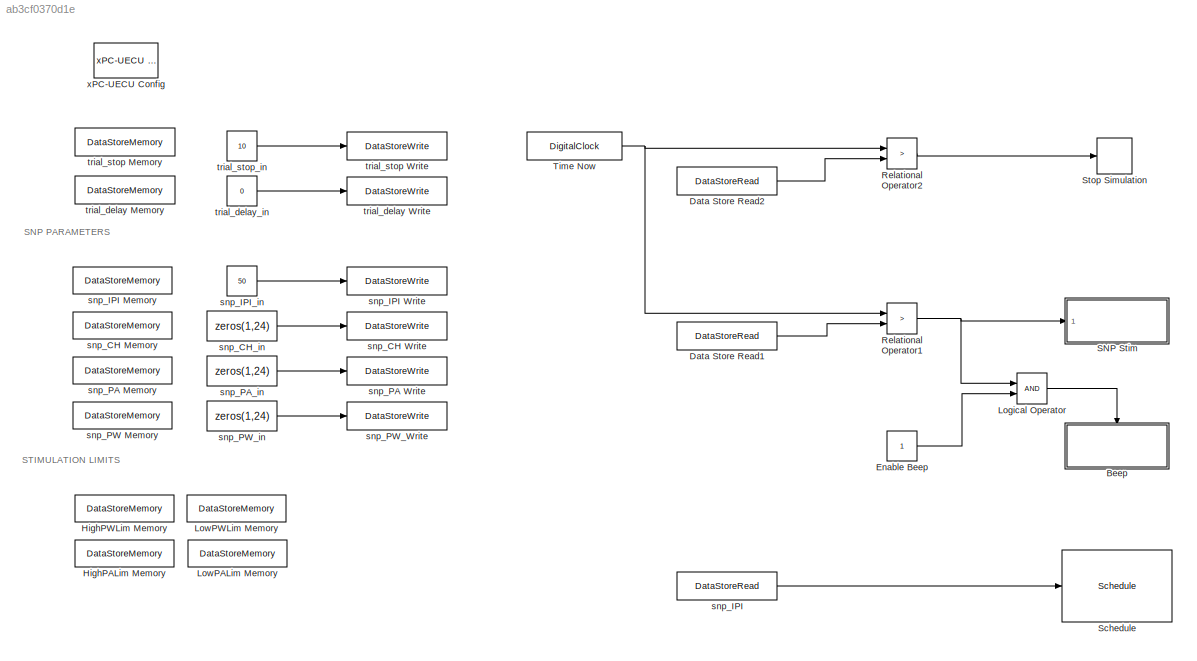
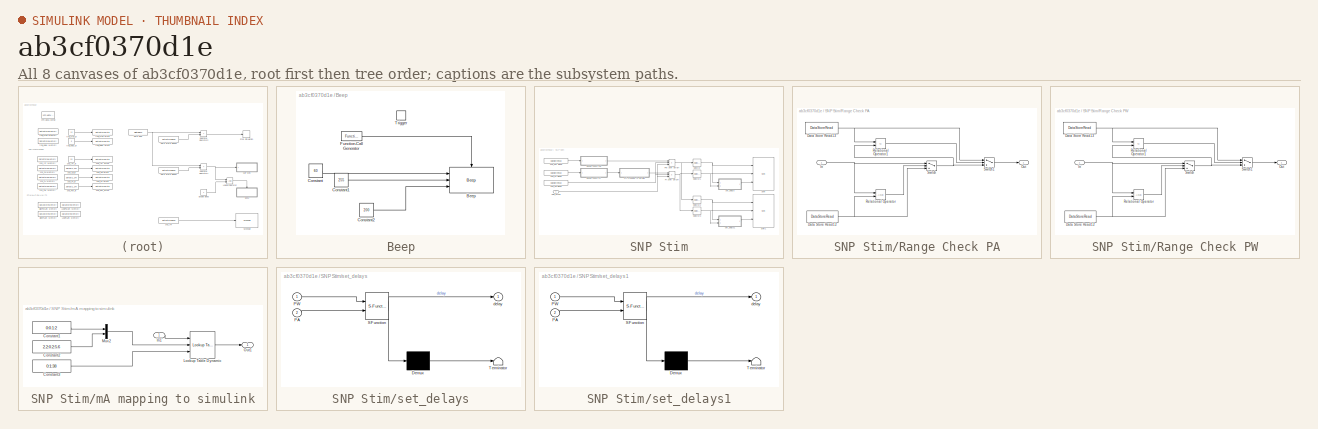
[diagram: thumbnail index - all 8 canvases of the model, root first then tree order]
MODEL slx_ab3cf0370d1e
KIND model
CONFIG AbsTol = auto
CONFIG EnableMultiTasking = on
CONFIG FixedStep = auto
CONFIG MaxStep = auto
CONFIG MinStep = auto
CONFIG PreLoadFcn = Ts=1e-3;
CONFIG RelTol = 1e-3
CONFIG SampleTimeConstraint = Unconstrained
CONFIG SolverName = FixedStepDiscrete
CONFIG StartTime = 0.0
CONFIG StopTime = inf
BLOCK [SubSystem] Beep
  Ports = [0, 0, 0, 1]
  RequestExecContextInheritance = off
  TreatAsAtomicUnit = on
BLOCK [Reference] Beep/Beep  REF=devices/Sound/Beep
  Ports = [3, 0, 0, 1]
  SourceBlock = devices/Sound/Beep
  SourceProductName = UECU
  SourceType = Beep
BLOCK [Constant] Beep/Constant
  OutDataTypeStr = uint8
  SampleTime = -1
  Value = 60
BLOCK [Constant] Beep/Constant1
  OutDataTypeStr = uint8
  SampleTime = -1
  Value = 255
BLOCK [Constant] Beep/Constant2
  OutDataTypeStr = uint16
  SampleTime = -1
  Value = 200
BLOCK [Reference] Beep/Function-Call Generator  REF=simulink/Ports &
Subsystems/Function-Call
Generator
  Ports = [0, 1]
  SourceBlock = simulink/Ports &\nSubsystems/Function-Call\nGenerator
  SourceProductBaseCode = SL
  SourceType = Function-Call Generator
BLOCK [TriggerPort] Beep/Trigger
  Ports = []
  StatesWhenEnabling = held
  VariantControl = (inherit)
BLOCK [DataStoreRead] Data Store Read1
  DataStoreName = trial_delay
  Ports = [0, 1]
BLOCK [DataStoreRead] Data Store Read2
  DataStoreName = trial_stop
  Ports = [0, 1]
  SampleTime = Ts
BLOCK [Constant] Enable Beep
  OutDataTypeStr = boolean
  SampleTime = Ts
BLOCK [DataStoreMemory] HighPALim Memory
  DataStoreName = HighPALim
  InitialValue = 5.6
  ReadBeforeWriteMsg = warning
  ShowAdditionalParam = off
  WriteAfterReadMsg = warning
  WriteAfterWriteMsg = warning
BLOCK [DataStoreMemory] HighPWLim Memory
  DataStoreName = HighPWLim
  InitialValue = 255
  ReadBeforeWriteMsg = warning
  ShowAdditionalParam = off
  WriteAfterReadMsg = warning
  WriteAfterWriteMsg = warning
BLOCK [Logic] Logical Operator
  AllPortsSameDT = off
  OutDataTypeStr = boolean
  Ports = [2, 1]
BLOCK [DataStoreMemory] LowPALim Memory
  DataStoreName = LowPALim
  ReadBeforeWriteMsg = warning
  ShowAdditionalParam = off
  WriteAfterReadMsg = warning
  WriteAfterWriteMsg = warning
BLOCK [DataStoreMemory] LowPWLim Memory
  DataStoreName = LowPWLim
  ReadBeforeWriteMsg = warning
  ShowAdditionalParam = off
  WriteAfterReadMsg = warning
  WriteAfterWriteMsg = warning
BLOCK [RelationalOperator] Relational Operator1
  InputSameDT = off
  Operator = >
  OutDataTypeStr = boolean
  Ports = [2, 1]
  SampleTime = Ts
BLOCK [RelationalOperator] Relational Operator2
  InputSameDT = off
  Operator = >
  OutDataTypeStr = boolean
  Ports = [2, 1]
  SampleTime = Ts
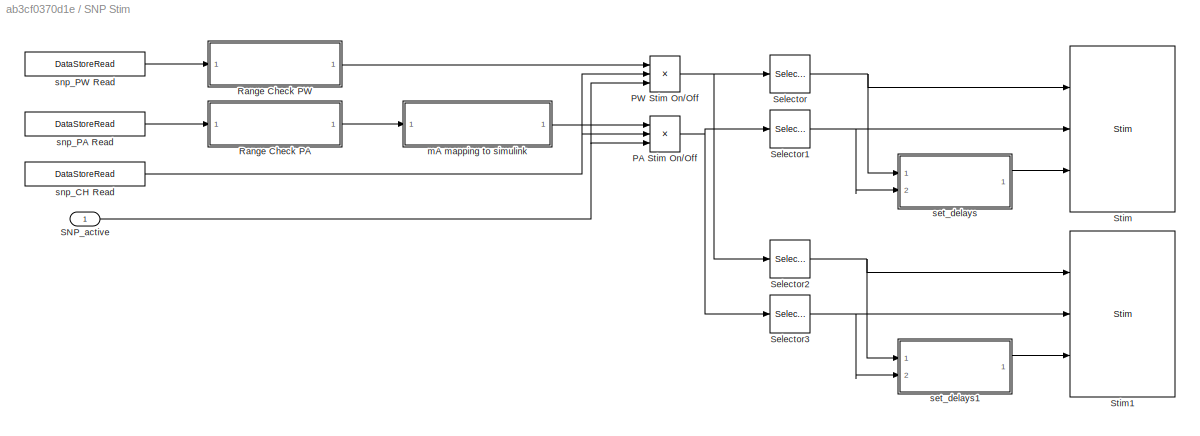
BLOCK [SubSystem] SNP Stim
  Ports = [1]
  RequestExecContextInheritance = off
  TreatAsAtomicUnit = on
BLOCK [Product] SNP Stim/PA Stim On//Off
  Inputs = ***
  OutDataTypeStr = uint8
  Ports = [3, 1]
  SampleTime = Ts
BLOCK [Product] SNP Stim/PW Stim On//Off
  Inputs = ***
  OutDataTypeStr = uint8
  Ports = [3, 1]
  SampleTime = Ts
BLOCK [SubSystem] SNP Stim/Range Check PA
  Ports = [1, 1]
  RequestExecContextInheritance = off
BLOCK [DataStoreRead] SNP Stim/Range Check PA/Data Store Read12
  DataStoreName = LowPALim
  Ports = [0, 1]
  SampleTime = Ts
BLOCK [DataStoreRead] SNP Stim/Range Check PA/Data Store Read13
  DataStoreName = HighPALim
  Ports = [0, 1]
  SampleTime = Ts
BLOCK [Inport] SNP Stim/Range Check PA/In
  OutDataTypeStr = double
BLOCK [Outport] SNP Stim/Range Check PA/Out
  OutDataTypeStr = double
BLOCK [RelationalOperator] SNP Stim/Range Check PA/Relational Operator
  InputSameDT = off
  OutDataTypeStr = boolean
  Ports = [2, 1]
  SampleTime = Ts
BLOCK [RelationalOperator] SNP Stim/Range Check PA/Relational Operator1
  InputSameDT = off
  Operator = <=
  OutDataTypeStr = boolean
  Ports = [2, 1]
  SampleTime = Ts
BLOCK [Switch] SNP Stim/Range Check PA/Switch
  Criteria = u2 > Threshold
  InputSameDT = off
  SampleTime = Ts
  SaturateOnIntegerOverflow = off
BLOCK [Switch] SNP Stim/Range Check PA/Switch1
  Criteria = u2 > Threshold
  InputSameDT = off
  SampleTime = Ts
  SaturateOnIntegerOverflow = off
BLOCK [SubSystem] SNP Stim/Range Check PW
  Ports = [1, 1]
  RequestExecContextInheritance = off
BLOCK [DataStoreRead] SNP Stim/Range Check PW/Data Store Read12
  DataStoreName = LowPWLim
  Ports = [0, 1]
  SampleTime = Ts
BLOCK [DataStoreRead] SNP Stim/Range Check PW/Data Store Read13
  DataStoreName = HighPWLim
  Ports = [0, 1]
  SampleTime = Ts
BLOCK [Inport] SNP Stim/Range Check PW/In
  OutDataTypeStr = uint8
BLOCK [Outport] SNP Stim/Range Check PW/Out
  OutDataTypeStr = uint8
BLOCK [RelationalOperator] SNP Stim/Range Check PW/Relational Operator
  InputSameDT = off
  OutDataTypeStr = boolean
  Ports = [2, 1]
  SampleTime = Ts
BLOCK [RelationalOperator] SNP Stim/Range Check PW/Relational Operator1
  InputSameDT = off
  Operator = <=
  OutDataTypeStr = boolean
  Ports = [2, 1]
  SampleTime = Ts
BLOCK [Switch] SNP Stim/Range Check PW/Switch
  Criteria = u2 > Threshold
  InputSameDT = off
  SampleTime = Ts
  SaturateOnIntegerOverflow = off
BLOCK [Switch] SNP Stim/Range Check PW/Switch1
  Criteria = u2 > Threshold
  InputSameDT = off
  SampleTime = Ts
  SaturateOnIntegerOverflow = off
BLOCK [Inport] SNP Stim/SNP_active
  OutDataTypeStr = boolean
BLOCK [Selector] SNP Stim/Selector
  IndexMode = Zero-based
  IndexOptions = Index vector (dialog)
  Indices = [0:11]
  InputPortWidth = 24
  OutputSizes = 1
  Ports = [1, 1]
BLOCK [Selector] SNP Stim/Selector1
  IndexMode = Zero-based
  IndexOptions = Index vector (dialog)
  Indices = [0:11]
  InputPortWidth = 24
  OutputSizes = 1
  Ports = [1, 1]
BLOCK [Selector] SNP Stim/Selector2
  IndexMode = Zero-based
  IndexOptions = Index vector (dialog)
  Indices = [12:23]
  InputPortWidth = 24
  OutputSizes = 1
  Ports = [1, 1]
BLOCK [Selector] SNP Stim/Selector3
  IndexMode = Zero-based
  IndexOptions = Index vector (dialog)
  Indices = [12:23]
  InputPortWidth = 24
  OutputSizes = 1
  Ports = [1, 1]
BLOCK [Reference] SNP Stim/Stim  REF=devices/Stim
  Ports = [3]
  SourceBlock = devices/Stim
  SourceProductName = UECU
  SourceType = Stim
BLOCK [Reference] SNP Stim/Stim1  REF=devices/Stim
  Ports = [3]
  SourceBlock = devices/Stim
  SourceProductName = UECU
  SourceType = Stim
BLOCK [SubSystem] SNP Stim/mA mapping to simulink
  Ports = [1, 1]
  RequestExecContextInheritance = off
BLOCK [Constant] SNP Stim/mA mapping to simulink/Constant1
  OutDataTypeStr = double
  Value = 0:0.1:2
BLOCK [Constant] SNP Stim/mA mapping to simulink/Constant2
  OutDataTypeStr = double
  Value = 2.2:0.2:5.6
BLOCK [Constant] SNP Stim/mA mapping to simulink/Constant3
  OutDataTypeStr = uint8
  Value = 0:1:38
BLOCK [Inport] SNP Stim/mA mapping to simulink/In1
  OutDataTypeStr = double
  PortDimensions = 24
BLOCK [Reference] SNP Stim/mA mapping to simulink/Lookup Table Dynamic  REF=simulink/Lookup
Tables/Lookup
Table
Dynamic
  Ports = [3, 1]
  SourceBlock = simulink/Lookup\nTables/Lookup\nTable\nDynamic
  SourceProductBaseCode = SL
  SourceType = Lookup Table Dynamic
BLOCK [Mux] SNP Stim/mA mapping to simulink/Mux2
  DisplayOption = bar
  Inputs = 2
  Ports = [2, 1]
BLOCK [Outport] SNP Stim/mA mapping to simulink/Out1
  OutDataTypeStr = uint8
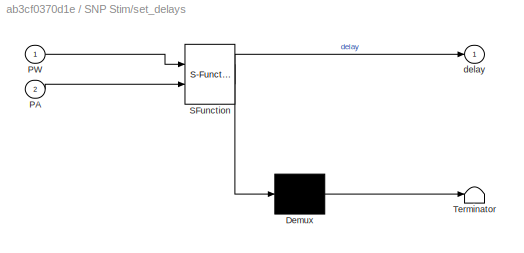
BLOCK [SubSystem] SNP Stim/set_delays
  ErrorFcn = Stateflow.Translate.translate
  PermitHierarchicalResolution = ExplicitOnly
  Ports = [2, 1]
  RequestExecContextInheritance = off
  SFBlockType = MATLAB Function
  TreatAsAtomicUnit = on
BLOCK [Demux] SNP Stim/set_delays/ Demux 
  Outputs = 1
  Ports = [1, 1]
BLOCK [S-Function] SNP Stim/set_delays/ SFunction 
  EnableBusSupport = on
  FunctionName = sf_sfun
  PortCounts = [2 2]
  Ports = [2, 2]
  SFcnIsStateOwnerBlock = off
  SFunctionDeploymentMode = off
  Tag = Stateflow S-Function 2
BLOCK [Terminator] SNP Stim/set_delays/ Terminator 
BLOCK [Inport] SNP Stim/set_delays/PA
  Port = 2
BLOCK [Inport] SNP Stim/set_delays/PW
BLOCK [Outport] SNP Stim/set_delays/delay
BLOCK [SubSystem] SNP Stim/set_delays1
  ErrorFcn = Stateflow.Translate.translate
  PermitHierarchicalResolution = ExplicitOnly
  Ports = [2, 1]
  RequestExecContextInheritance = off
  SFBlockType = MATLAB Function
  TreatAsAtomicUnit = on
BLOCK [Demux] SNP Stim/set_delays1/ Demux 
  Outputs = 1
  Ports = [1, 1]
BLOCK [S-Function] SNP Stim/set_delays1/ SFunction 
  EnableBusSupport = on
  FunctionName = sf_sfun
  PortCounts = [2 2]
  Ports = [2, 2]
  SFcnIsStateOwnerBlock = off
  SFunctionDeploymentMode = off
  Tag = Stateflow S-Function 1
BLOCK [Terminator] SNP Stim/set_delays1/ Terminator 
BLOCK [Inport] SNP Stim/set_delays1/PA
  Port = 2
BLOCK [Inport] SNP Stim/set_delays1/PW
BLOCK [Outport] SNP Stim/set_delays1/delay
BLOCK [DataStoreRead] SNP Stim/snp_CH Read
  DataStoreName = snp_CH
  Ports = [0, 1]
  SampleTime = Ts
BLOCK [DataStoreRead] SNP Stim/snp_PA Read
  DataStoreName = snp_PA
  Ports = [0, 1]
  SampleTime = Ts
BLOCK [DataStoreRead] SNP Stim/snp_PW Read
  DataStoreName = snp_PW
  Ports = [0, 1]
  SampleTime = Ts
BLOCK [Reference] Schedule  REF=devices/Schedule
  Ports = [1]
  SourceBlock = devices/Schedule
  SourceProductName = UECU
  SourceType = Schedule
BLOCK [Stop] Stop Simulation
BLOCK [DigitalClock] Time Now
  SampleTime = Ts
BLOCK [DataStoreMemory] snp_CH Memory
  DataStoreName = snp_CH
  InitialValue = zeros(1,24)
  OutDataTypeStr = boolean
  ReadBeforeWriteMsg = warning
  ShowAdditionalParam = off
  WriteAfterReadMsg = warning
  WriteAfterWriteMsg = warning
BLOCK [DataStoreWrite] snp_CH Write
  DataStoreName = snp_CH
  Ports = [1]
  SampleTime = Ts
BLOCK [Constant] snp_CH_in
  OutDataTypeStr = boolean
  SampleTime = Ts
  Value = zeros(1,24)
BLOCK [DataStoreRead] snp_IPI
  DataStoreName = snp_IPI
  Ports = [0, 1]
  SampleTime = Ts
BLOCK [DataStoreMemory] snp_IPI Memory
  DataStoreName = snp_IPI
  OutDataTypeStr = uint16
  ReadBeforeWriteMsg = warning
  ShowAdditionalParam = off
  WriteAfterReadMsg = warning
  WriteAfterWriteMsg = warning
BLOCK [DataStoreWrite] snp_IPI Write
  DataStoreName = snp_IPI
  Ports = [1]
  SampleTime = Ts
BLOCK [Constant] snp_IPI_in
  OutDataTypeStr = uint16
  SampleTime = Ts
  Value = 50
BLOCK [DataStoreMemory] snp_PA Memory
  DataStoreName = snp_PA
  InitialValue = zeros(1,24)
  OutDataTypeStr = double
  ReadBeforeWriteMsg = warning
  ShowAdditionalParam = off
  WriteAfterReadMsg = warning
  WriteAfterWriteMsg = warning
BLOCK [DataStoreWrite] snp_PA Write
  DataStoreName = snp_PA
  Ports = [1]
  SampleTime = Ts
BLOCK [Constant] snp_PA_in
  OutDataTypeStr = double
  SampleTime = Ts
  Value = zeros(1,24)
BLOCK [DataStoreMemory] snp_PW Memory
  DataStoreName = snp_PW
  InitialValue = zeros(1,24)
  OutDataTypeStr = uint8
  ReadBeforeWriteMsg = warning
  ShowAdditionalParam = off
  WriteAfterReadMsg = warning
  WriteAfterWriteMsg = warning
BLOCK [DataStoreWrite] snp_PW_Write
  DataStoreName = snp_PW
  Ports = [1]
  SampleTime = Ts
BLOCK [Constant] snp_PW_in
  OutDataTypeStr = uint8
  SampleTime = Ts
  Value = zeros(1,24)
BLOCK [DataStoreMemory] trial_delay Memory
  DataStoreName = trial_delay
  ReadBeforeWriteMsg = warning
  ShowAdditionalParam = off
  WriteAfterReadMsg = warning
  WriteAfterWriteMsg = warning
BLOCK [DataStoreWrite] trial_delay Write
  DataStoreName = trial_delay
  Ports = [1]
BLOCK [Constant] trial_delay_in
  SampleTime = Ts
  Value = 0
BLOCK [DataStoreMemory] trial_stop Memory
  DataStoreName = trial_stop
  ReadBeforeWriteMsg = warning
  ShowAdditionalParam = off
  WriteAfterReadMsg = warning
  WriteAfterWriteMsg = warning
BLOCK [DataStoreWrite] trial_stop Write
  DataStoreName = trial_stop
  Ports = [1]
BLOCK [Constant] trial_stop_in
  SampleTime = Ts
  Value = 10
BLOCK [Reference] xPC-UECU Config  REF=devices/xPC Functions/xPC-UECU
Config
  Ports = []
  SourceBlock = devices/xPC Functions/xPC-UECU\nConfig
  SourceProductName = UECU
  SourceType = xPC-UECU Config
ANNOTATION (root): SNP PARAMETERS
ANNOTATION (root): STIMULATION LIMITS
LINE Beep/Constant1:1 -> Beep/Beep:2
LINE Beep/Constant2:1 -> Beep/Beep:3
LINE Beep/Constant:1 -> Beep/Beep:1
LINE Beep/Function-Call Generator:1 -> Beep/Beep:trigger
LINE Data Store Read1:1 -> Relational Operator1:2
LINE Data Store Read2:1 -> Relational Operator2:2
LINE Enable Beep:1 -> Logical Operator:2
LINE Logical Operator:1 -> Beep:trigger
NET Relational Operator1:1 -> Logical Operator:1, SNP Stim:1
LINE Relational Operator2:1 -> Stop Simulation:1
NET SNP Stim/PA Stim On//Off:1 -> SNP Stim/Selector1:1, SNP Stim/Selector3:1
NET SNP Stim/PW Stim On//Off:1 -> SNP Stim/Selector2:1, SNP Stim/Selector:1
NET SNP Stim/Range Check PA/Data Store Read12:1 -> SNP Stim/Range Check PA/Relational Operator:2, SNP Stim/Range Check PA/Switch:3
NET SNP Stim/Range Check PA/Data Store Read13:1 -> SNP Stim/Range Check PA/Relational Operator1:1, SNP Stim/Range Check PA/Switch1:1
NET SNP Stim/Range Check PA/In:1 -> SNP Stim/Range Check PA/Relational Operator:1, SNP Stim/Range Check PA/Switch:1
LINE SNP Stim/Range Check PA/Relational Operator1:1 -> SNP Stim/Range Check PA/Switch1:2
LINE SNP Stim/Range Check PA/Relational Operator:1 -> SNP Stim/Range Check PA/Switch:2
LINE SNP Stim/Range Check PA/Switch1:1 -> SNP Stim/Range Check PA/Out:1
NET SNP Stim/Range Check PA/Switch:1 -> SNP Stim/Range Check PA/Relational Operator1:2, SNP Stim/Range Check PA/Switch1:3
LINE SNP Stim/Range Check PA:1 -> SNP Stim/mA mapping to simulink:1
NET SNP Stim/Range Check PW/Data Store Read12:1 -> SNP Stim/Range Check PW/Relational Operator:2, SNP Stim/Range Check PW/Switch:3
NET SNP Stim/Range Check PW/Data Store Read13:1 -> SNP Stim/Range Check PW/Relational Operator1:1, SNP Stim/Range Check PW/Switch1:1
NET SNP Stim/Range Check PW/In:1 -> SNP Stim/Range Check PW/Relational Operator:1, SNP Stim/Range Check PW/Switch:1
LINE SNP Stim/Range Check PW/Relational Operator1:1 -> SNP Stim/Range Check PW/Switch1:2
LINE SNP Stim/Range Check PW/Relational Operator:1 -> SNP Stim/Range Check PW/Switch:2
LINE SNP Stim/Range Check PW/Switch1:1 -> SNP Stim/Range Check PW/Out:1
NET SNP Stim/Range Check PW/Switch:1 -> SNP Stim/Range Check PW/Relational Operator1:2, SNP Stim/Range Check PW/Switch1:3
LINE SNP Stim/Range Check PW:1 -> SNP Stim/PW Stim On//Off:1
NET SNP Stim/SNP_active:1 -> SNP Stim/PA Stim On//Off:3, SNP Stim/PW Stim On//Off:3
NET SNP Stim/Selector1:1 -> SNP Stim/Stim:2, SNP Stim/set_delays:2
NET SNP Stim/Selector2:1 -> SNP Stim/Stim1:1, SNP Stim/set_delays1:1
NET SNP Stim/Selector3:1 -> SNP Stim/Stim1:2, SNP Stim/set_delays1:2
NET SNP Stim/Selector:1 -> SNP Stim/Stim:1, SNP Stim/set_delays:1
LINE SNP Stim/mA mapping to simulink/Constant1:1 -> SNP Stim/mA mapping to simulink/Mux2:1
LINE SNP Stim/mA mapping to simulink/Constant2:1 -> SNP Stim/mA mapping to simulink/Mux2:2
LINE SNP Stim/mA mapping to simulink/Constant3:1 -> SNP Stim/mA mapping to simulink/Lookup Table Dynamic:3
LINE SNP Stim/mA mapping to simulink/In1:1 -> SNP Stim/mA mapping to simulink/Lookup Table Dynamic:1
LINE SNP Stim/mA mapping to simulink/Lookup Table Dynamic:1 -> SNP Stim/mA mapping to simulink/Out1:1
LINE SNP Stim/mA mapping to simulink/Mux2:1 -> SNP Stim/mA mapping to simulink/Lookup Table Dynamic:2
LINE SNP Stim/mA mapping to simulink:1 -> SNP Stim/PA Stim On//Off:1
LINE SNP Stim/set_delays1:1 -> SNP Stim/Stim1:3
LINE SNP Stim/set_delays:1 -> SNP Stim/Stim:3
NET SNP Stim/snp_CH Read:1 -> SNP Stim/PA Stim On//Off:2, SNP Stim/PW Stim On//Off:2
LINE SNP Stim/snp_PA Read:1 -> SNP Stim/Range Check PA:1
LINE SNP Stim/snp_PW Read:1 -> SNP Stim/Range Check PW:1
NET Time Now:1 -> Relational Operator1:1, Relational Operator2:1
LINE snp_CH_in:1 -> snp_CH Write:1
LINE snp_IPI:1 -> Schedule:1
LINE snp_IPI_in:1 -> snp_IPI Write:1
LINE snp_PA_in:1 -> snp_PA Write:1
LINE snp_PW_in:1 -> snp_PW_Write:1
LINE trial_delay_in:1 -> trial_delay Write:1
LINE trial_stop_in:1 -> trial_stop Write:1
note: NET lines group one-source signal fan-out (src -> all destinations, sorted); 1:1 wires keep LINE
CHART SNP Stim/set_delays states=1 transitions=1
  STATE_LABEL 'eML_blk_kernel()'
  STATE_LABEL 'SCRIPT:\nfunction delay = set_delays(PW, PA)\n\nPWA = PW.*PA; % figure out which channels have stim\nL = length(PWA(PWA~=0)); % find the total number of channels with stim\nd = uint8(1:L); % set the delay vector based on the number of channels with stim\nPWA(PWA~=0) = d;\ndelay=uint16(PWA);\n'
CHART SNP Stim/set_delays1 states=1 transitions=1
  STATE_LABEL 'eML_blk_kernel()'
  STATE_LABEL 'SCRIPT:\nfunction delay = set_delays(PW, PA)\n\nPWA = PW.*PA; % figure out which channels have stim\nL = length(PWA(PWA~=0)); % find the total number of channels with stim\nd = uint8(1:L); % set the delay vector based on the number of channels with stim\nPWA(PWA~=0) = d;\ndelay=uint16(PWA);\n'
CHART  states=0 transitions=0
CHART  states=0 transitions=0
